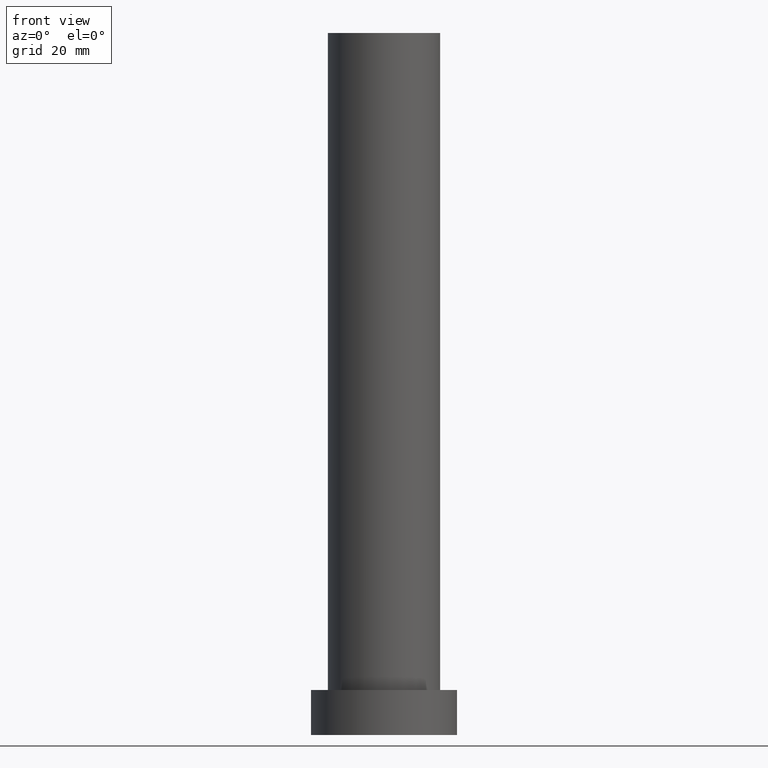
[diagram: clean part render]
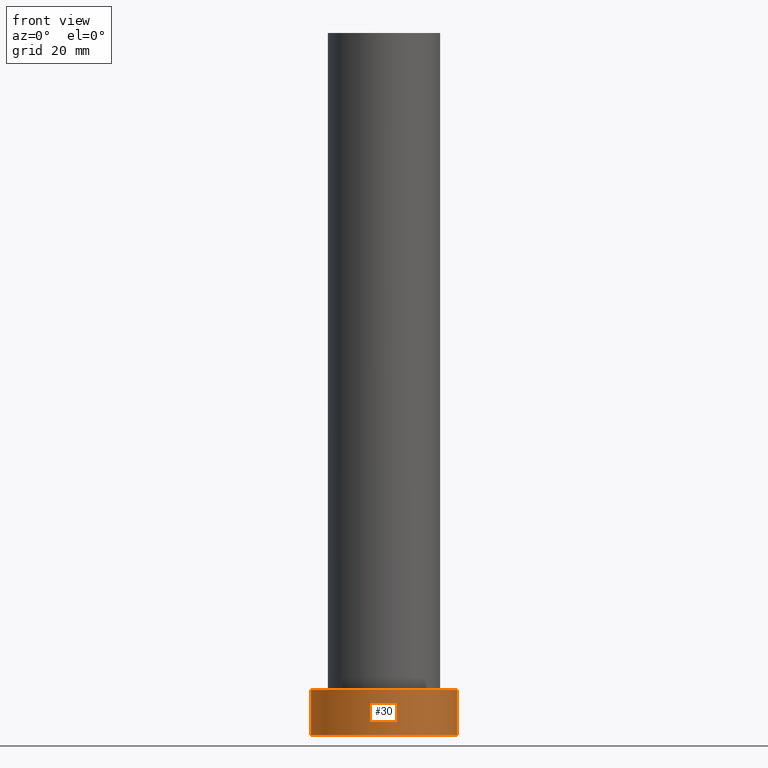
[diagram: same view with one face highlighted and labeled with its STEP entity id]
A machine part, front view. The second image highlights one B-rep face of the part: STEP entity #30.
In plain terms, the highlighted cylindrical surface (partial cylindrical patch) has radius 13 mm, axis along (-0, -0, -1).
Its self-contained STEP definition (entity closure, byte-faithful):
#10 = DIRECTION ( 'NONE',  ( -0.000000000000000000, -0.000000000000000000, -1.000000000000000000 ) ) ;
#15 = AXIS2_PLACEMENT_3D ( 'NONE', #93, #115, #56 ) ;
#21 = LINE ( 'NONE', #100, #226 ) ;
#30 = ADVANCED_FACE ( 'NONE', ( #67 ), #44, .T. ) ;
#35 = ORIENTED_EDGE ( 'NONE', *, *, #79, .F. ) ;
#36 = DIRECTION ( 'NONE',  ( 0.000000000000000000, 0.000000000000000000, 1.000000000000000000 ) ) ;
#41 = DIRECTION ( 'NONE',  ( 0.000000000000000000, 0.000000000000000000, 1.000000000000000000 ) ) ;
#44 = CYLINDRICAL_SURFACE ( 'NONE', #15, 13.00000000000000178 ) ;
#49 = CARTESIAN_POINT ( 'NONE',  ( -13.00000000000000178, 0.000000000000000000, 8.000000000000000000 ) ) ;
#56 = DIRECTION ( 'NONE',  ( -1.000000000000000000, 0.000000000000000000, 0.000000000000000000 ) ) ;
#67 = FACE_OUTER_BOUND ( 'NONE', #72, .T. ) ;
#72 = EDGE_LOOP ( 'NONE', ( #35, #137, #132, #147 ) ) ;
#79 = EDGE_CURVE ( 'NONE', #191, #235, #95, .T. ) ;
#84 = AXIS2_PLACEMENT_3D ( 'NONE', #124, #36, #177 ) ;
#90 = CIRCLE ( 'NONE', #84, 13.00000000000000178 ) ;
#93 = CARTESIAN_POINT ( 'NONE',  ( 0.000000000000000000, 0.000000000000000000, 8.000000000000000000 ) ) ;
#95 = LINE ( 'NONE', #169, #224 ) ;
#100 = CARTESIAN_POINT ( 'NONE',  ( -13.00000000000000178, 0.000000000000000000, 8.000000000000000000 ) ) ;
#102 = CARTESIAN_POINT ( 'NONE',  ( 13.00000000000000178, 1.592040838891559293E-15, 8.000000000000000000 ) ) ;
#105 = CARTESIAN_POINT ( 'NONE',  ( 0.000000000000000000, 0.000000000000000000, 0.000000000000000000 ) ) ;
#115 = DIRECTION ( 'NONE',  ( -0.000000000000000000, -0.000000000000000000, -1.000000000000000000 ) ) ;
#120 = VERTEX_POINT ( 'NONE', #49 ) ;
#124 = CARTESIAN_POINT ( 'NONE',  ( 0.000000000000000000, 0.000000000000000000, 8.000000000000000000 ) ) ;
#132 = ORIENTED_EDGE ( 'NONE', *, *, #139, .T. ) ;
#137 = ORIENTED_EDGE ( 'NONE', *, *, #231, .F. ) ;
#139 = EDGE_CURVE ( 'NONE', #120, #150, #21, .T. ) ;
#147 = ORIENTED_EDGE ( 'NONE', *, *, #210, .T. ) ;
#150 = VERTEX_POINT ( 'NONE', #238 ) ;
#169 = CARTESIAN_POINT ( 'NONE',  ( 13.00000000000000178, 1.592040838891559293E-15, 8.000000000000000000 ) ) ;
#171 = DIRECTION ( 'NONE',  ( -0.000000000000000000, -0.000000000000000000, -1.000000000000000000 ) ) ;
#177 = DIRECTION ( 'NONE',  ( 1.000000000000000000, 0.000000000000000000, 0.000000000000000000 ) ) ;
#191 = VERTEX_POINT ( 'NONE', #102 ) ;
#201 = DIRECTION ( 'NONE',  ( 1.000000000000000000, 0.000000000000000000, 0.000000000000000000 ) ) ;
#210 = EDGE_CURVE ( 'NONE', #150, #235, #249, .T. ) ;
#220 = AXIS2_PLACEMENT_3D ( 'NONE', #105, #41, #201 ) ;
#224 = VECTOR ( 'NONE', #10, 1000.000000000000000 ) ;
#226 = VECTOR ( 'NONE', #171, 1000.000000000000000 ) ;
#231 = EDGE_CURVE ( 'NONE', #120, #191, #90, .T. ) ;
#235 = VERTEX_POINT ( 'NONE', #242 ) ;
#238 = CARTESIAN_POINT ( 'NONE',  ( -13.00000000000000178, 0.000000000000000000, 0.000000000000000000 ) ) ;
#242 = CARTESIAN_POINT ( 'NONE',  ( 13.00000000000000178, 1.592040838891559293E-15, 0.000000000000000000 ) ) ;
#249 = CIRCLE ( 'NONE', #220, 13.00000000000000178 ) ;